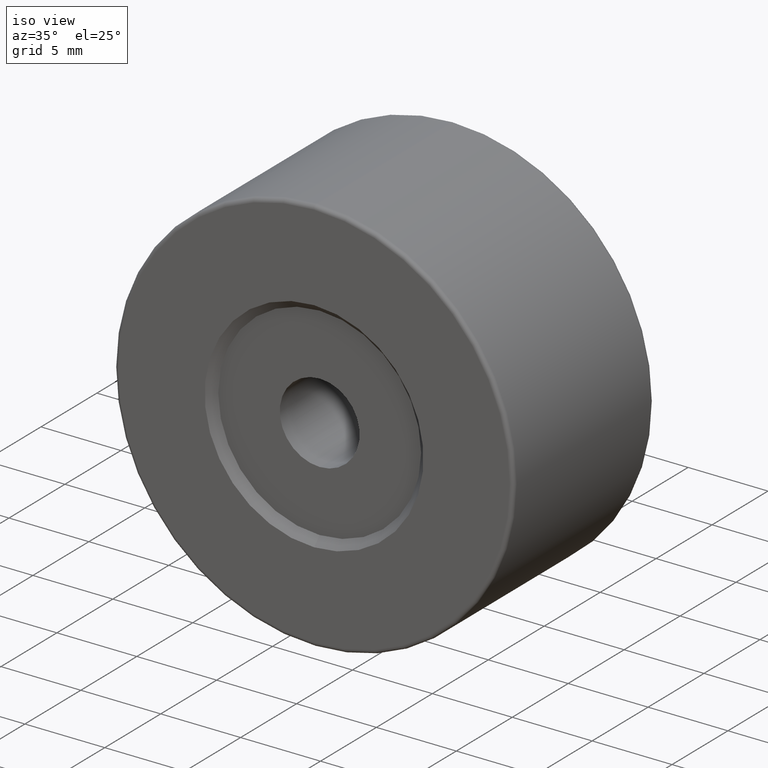
[diagram: clean part render]
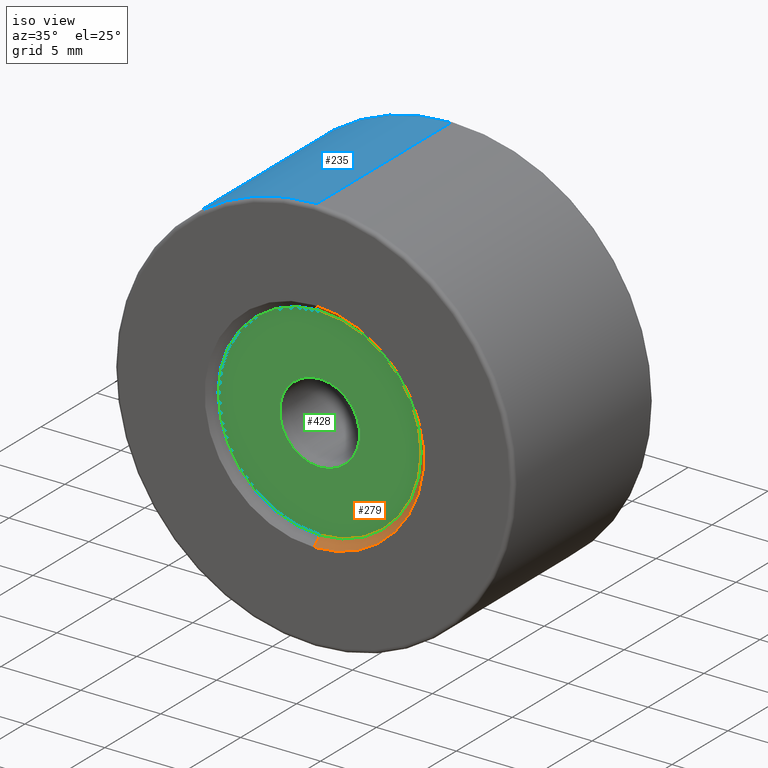
[diagram: same view with three faces highlighted in distinct colors, each labeled with its STEP entity id]
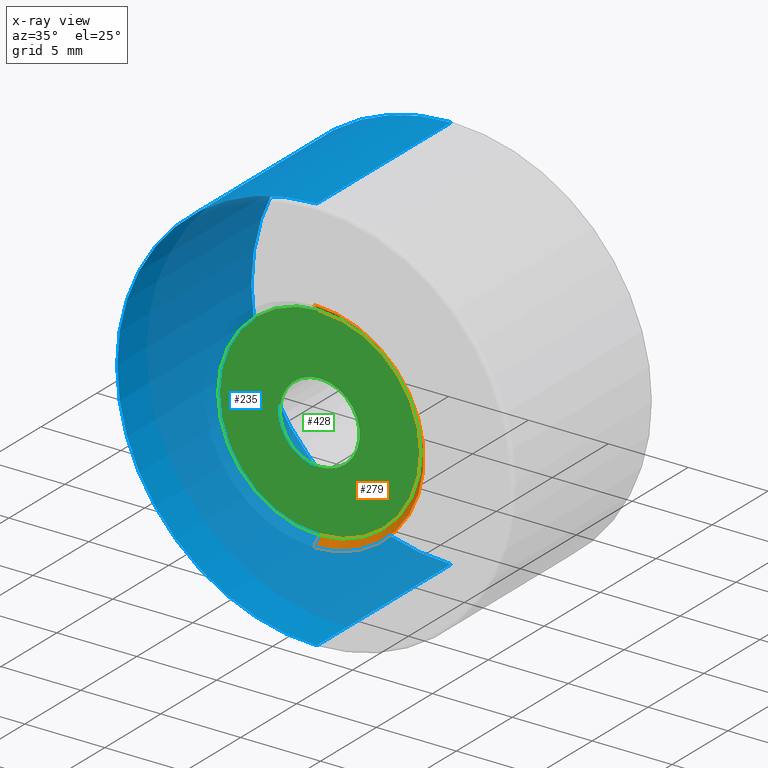
[diagram: x-ray of the same camera — body ghosted, the three highlighted faces saturated]
A machine part, iso view with three faces highlighted in distinct colors.
The next image is the same camera in x-ray (body ghosted, the three faces saturated) — at least one of them is partly hidden behind the body in this view.
Their STEP definitions:

[orange] entity #279 — the highlighted conical surface has half-angle 45 deg.
#9 = FACE_OUTER_BOUND ( 'NONE', #497, .T. ) ;
#39 = CARTESIAN_POINT ( 'NONE',  ( -22.50520183104453409, -4.851747815230612382, 56.85000000000000142 ) ) ;
#40 = EDGE_CURVE ( 'NONE', #120, #565, #305, .T. ) ;
#48 = CARTESIAN_POINT ( 'NONE',  ( -22.50520183104453409, -4.851747815230612382, 43.14999999999999858 ) ) ;
#51 = AXIS2_PLACEMENT_3D ( 'NONE', #94, #544, #185 ) ;
#52 = CIRCLE ( 'NONE', #455, 6.350000000000001421 ) ;
#88 = DIRECTION ( 'NONE',  ( 0.0000000000000000000, 0.0000000000000000000, 1.000000000000000000 ) ) ;
#89 = LINE ( 'NONE', #48, #489 ) ;
#94 = CARTESIAN_POINT ( 'NONE',  ( -22.50520183104453409, -4.851747815230612382, 50.00000000000000000 ) ) ;
#120 = VERTEX_POINT ( 'NONE', #39 ) ;
#185 = DIRECTION ( 'NONE',  ( 0.0000000000000000000, 0.0000000000000000000, -1.000000000000000000 ) ) ;
#211 = ORIENTED_EDGE ( 'NONE', *, *, #260, .T. ) ;
#232 = DIRECTION ( 'NONE',  ( 0.0000000000000000000, -0.7071067811865469066, -0.7071067811865482389 ) ) ;
#260 = EDGE_CURVE ( 'NONE', #429, #565, #89, .T. ) ;
#279 = ADVANCED_FACE ( 'NONE', ( #9 ), #298, .F. ) ;
#298 = CONICAL_SURFACE ( 'NONE', #51, 6.850000000000002309, 0.7853981633974491672 ) ;
#305 = CIRCLE ( 'NONE', #396, 6.850000000000002309 ) ;
#319 = EDGE_CURVE ( 'NONE', #492, #429, #52, .T. ) ;
#334 = ORIENTED_EDGE ( 'NONE', *, *, #471, .F. ) ;
#355 = DIRECTION ( 'NONE',  ( 0.0000000000000000000, 0.0000000000000000000, 1.000000000000000000 ) ) ;
#362 = DIRECTION ( 'NONE',  ( 0.0000000000000000000, 1.000000000000000000, 0.0000000000000000000 ) ) ;
#373 = LINE ( 'NONE', #553, #481 ) ;
#396 = AXIS2_PLACEMENT_3D ( 'NONE', #452, #362, #88 ) ;
#403 = DIRECTION ( 'NONE',  ( -0.0000000000000000000, 1.000000000000000000, -0.0000000000000000000 ) ) ;
#429 = VERTEX_POINT ( 'NONE', #500 ) ;
#452 = CARTESIAN_POINT ( 'NONE',  ( -22.50520183104453409, -4.851747815230612382, 50.00000000000000000 ) ) ;
#454 = CARTESIAN_POINT ( 'NONE',  ( -22.50520183104453409, -4.351747815230611494, 50.00000000000000000 ) ) ;
#455 = AXIS2_PLACEMENT_3D ( 'NONE', #454, #403, #355 ) ;
#461 = CARTESIAN_POINT ( 'NONE',  ( -22.50520183104453409, -4.851747815230612382, 43.14999999999999858 ) ) ;
#471 = EDGE_CURVE ( 'NONE', #492, #120, #373, .T. ) ;
#472 = ORIENTED_EDGE ( 'NONE', *, *, #319, .T. ) ;
#481 = VECTOR ( 'NONE', #508, 999.9999999999998863 ) ;
#489 = VECTOR ( 'NONE', #232, 999.9999999999998863 ) ;
#492 = VERTEX_POINT ( 'NONE', #509 ) ;
#497 = EDGE_LOOP ( 'NONE', ( #334, #472, #211, #546 ) ) ;
#500 = CARTESIAN_POINT ( 'NONE',  ( -22.50520183104453409, -4.351747815230611494, 43.64999999999999858 ) ) ;
#508 = DIRECTION ( 'NONE',  ( 8.659560562354941486E-17, -0.7071067811865469066, 0.7071067811865482389 ) ) ;
#509 = CARTESIAN_POINT ( 'NONE',  ( -22.50520183104453409, -4.351747815230611494, 56.35000000000000142 ) ) ;
#544 = DIRECTION ( 'NONE',  ( -0.0000000000000000000, -1.000000000000000000, -0.0000000000000000000 ) ) ;
#546 = ORIENTED_EDGE ( 'NONE', *, *, #40, .F. ) ;
#553 = CARTESIAN_POINT ( 'NONE',  ( -22.50520183104453409, -4.851747815230612382, 56.85000000000000142 ) ) ;
#565 = VERTEX_POINT ( 'NONE', #461 ) ;

[blue] entity #235 — the highlighted cylindrical surface (partial cylindrical patch) has radius 12.5 mm, axis along (-0, -1, -0).
#25 = DIRECTION ( 'NONE',  ( 0.0000000000000000000, 0.0000000000000000000, 1.000000000000000000 ) ) ;
#64 = CARTESIAN_POINT ( 'NONE',  ( -22.50520183104453409, -4.601747815230612382, 50.00000000000000000 ) ) ;
#70 = EDGE_LOOP ( 'NONE', ( #467, #360, #560, #108 ) ) ;
#84 = LINE ( 'NONE', #458, #439 ) ;
#92 = DIRECTION ( 'NONE',  ( -0.0000000000000000000, -1.000000000000000000, -0.0000000000000000000 ) ) ;
#108 = ORIENTED_EDGE ( 'NONE', *, *, #548, .T. ) ;
#123 = AXIS2_PLACEMENT_3D ( 'NONE', #225, #318, #498 ) ;
#125 = CYLINDRICAL_SURFACE ( 'NONE', #478, 12.49999999999999645 ) ;
#133 = CARTESIAN_POINT ( 'NONE',  ( -22.50520183104453409, 7.648252184769388506, 62.50000000000000000 ) ) ;
#134 = VECTOR ( 'NONE', #266, 1000.000000000000000 ) ;
#136 = FACE_OUTER_BOUND ( 'NONE', #70, .T. ) ;
#142 = CARTESIAN_POINT ( 'NONE',  ( -22.50520183104453409, 7.398252184769388506, 37.50000000000000711 ) ) ;
#156 = VERTEX_POINT ( 'NONE', #394 ) ;
#225 = CARTESIAN_POINT ( 'NONE',  ( -22.50520183104453409, 7.398252184769388506, 50.00000000000000000 ) ) ;
#235 = ADVANCED_FACE ( 'NONE', ( #136 ), #125, .T. ) ;
#266 = DIRECTION ( 'NONE',  ( -0.0000000000000000000, -1.000000000000000000, -0.0000000000000000000 ) ) ;
#268 = CARTESIAN_POINT ( 'NONE',  ( -22.50520183104453409, 7.648252184769388506, 50.00000000000000000 ) ) ;
#272 = DIRECTION ( 'NONE',  ( -0.0000000000000000000, -1.000000000000000000, -0.0000000000000000000 ) ) ;
#273 = EDGE_CURVE ( 'NONE', #393, #156, #447, .T. ) ;
#303 = EDGE_CURVE ( 'NONE', #393, #487, #378, .T. ) ;
#318 = DIRECTION ( 'NONE',  ( -0.0000000000000000000, -1.000000000000000000, -0.0000000000000000000 ) ) ;
#329 = DIRECTION ( 'NONE',  ( 0.0000000000000000000, 1.000000000000000000, 0.0000000000000000000 ) ) ;
#330 = CARTESIAN_POINT ( 'NONE',  ( -22.50520183104453409, 7.398252184769388506, 62.50000000000000000 ) ) ;
#337 = VERTEX_POINT ( 'NONE', #574 ) ;
#357 = DIRECTION ( 'NONE',  ( 0.0000000000000000000, 0.0000000000000000000, -1.000000000000000000 ) ) ;
#360 = ORIENTED_EDGE ( 'NONE', *, *, #303, .T. ) ;
#367 = EDGE_CURVE ( 'NONE', #487, #337, #84, .T. ) ;
#378 = CIRCLE ( 'NONE', #123, 12.49999999999999645 ) ;
#393 = VERTEX_POINT ( 'NONE', #330 ) ;
#394 = CARTESIAN_POINT ( 'NONE',  ( -22.50520183104453409, -4.601747815230612382, 62.50000000000000000 ) ) ;
#404 = AXIS2_PLACEMENT_3D ( 'NONE', #64, #329, #25 ) ;
#439 = VECTOR ( 'NONE', #272, 1000.000000000000000 ) ;
#447 = LINE ( 'NONE', #133, #134 ) ;
#458 = CARTESIAN_POINT ( 'NONE',  ( -22.50520183104453409, 7.648252184769388506, 37.50000000000000711 ) ) ;
#467 = ORIENTED_EDGE ( 'NONE', *, *, #273, .F. ) ;
#478 = AXIS2_PLACEMENT_3D ( 'NONE', #268, #92, #357 ) ;
#487 = VERTEX_POINT ( 'NONE', #142 ) ;
#498 = DIRECTION ( 'NONE',  ( 0.0000000000000000000, 0.0000000000000000000, 1.000000000000000000 ) ) ;
#532 = CIRCLE ( 'NONE', #404, 12.49999999999999645 ) ;
#548 = EDGE_CURVE ( 'NONE', #337, #156, #532, .T. ) ;
#560 = ORIENTED_EDGE ( 'NONE', *, *, #367, .T. ) ;
#574 = CARTESIAN_POINT ( 'NONE',  ( -22.50520183104453409, -4.601747815230612382, 37.50000000000000711 ) ) ;

[green] entity #428 — the highlighted planar face has unit normal (0, -1, 0).
#16 = CARTESIAN_POINT ( 'NONE',  ( -22.50520183104453409, -4.351747815230611494, 50.00000000000000000 ) ) ;
#19 = FACE_OUTER_BOUND ( 'NONE', #245, .T. ) ;
#37 = AXIS2_PLACEMENT_3D ( 'NONE', #103, #460, #63 ) ;
#52 = CIRCLE ( 'NONE', #455, 6.350000000000001421 ) ;
#59 = CARTESIAN_POINT ( 'NONE',  ( -22.50520183104453409, -4.351747815230611494, 52.50000000000000000 ) ) ;
#63 = DIRECTION ( 'NONE',  ( 0.0000000000000000000, 0.0000000000000000000, 1.000000000000000000 ) ) ;
#66 = VERTEX_POINT ( 'NONE', #138 ) ;
#87 = EDGE_CURVE ( 'NONE', #66, #375, #317, .T. ) ;
#103 = CARTESIAN_POINT ( 'NONE',  ( -22.50520183104453409, -4.351747815230611494, 50.00000000000000000 ) ) ;
#110 = ORIENTED_EDGE ( 'NONE', *, *, #445, .F. ) ;
#111 = ORIENTED_EDGE ( 'NONE', *, *, #191, .F. ) ;
#138 = CARTESIAN_POINT ( 'NONE',  ( -22.50520183104453409, -4.351747815230611494, 47.50000000000000711 ) ) ;
#143 = FACE_BOUND ( 'NONE', #386, .T. ) ;
#174 = DIRECTION ( 'NONE',  ( 0.0000000000000000000, 0.0000000000000000000, -1.000000000000000000 ) ) ;
#191 = EDGE_CURVE ( 'NONE', #375, #66, #572, .T. ) ;
#210 = DIRECTION ( 'NONE',  ( 0.0000000000000000000, 0.0000000000000000000, -1.000000000000000000 ) ) ;
#236 = DIRECTION ( 'NONE',  ( 0.0000000000000000000, 0.0000000000000000000, 1.000000000000000000 ) ) ;
#245 = EDGE_LOOP ( 'NONE', ( #110, #475 ) ) ;
#276 = DIRECTION ( 'NONE',  ( 0.0000000000000000000, -1.000000000000000000, 0.0000000000000000000 ) ) ;
#280 = PLANE ( 'NONE',  #338 ) ;
#285 = CIRCLE ( 'NONE', #37, 6.350000000000001421 ) ;
#317 = CIRCLE ( 'NONE', #495, 2.499999999999995115 ) ;
#319 = EDGE_CURVE ( 'NONE', #492, #429, #52, .T. ) ;
#338 = AXIS2_PLACEMENT_3D ( 'NONE', #16, #276, #236 ) ;
#355 = DIRECTION ( 'NONE',  ( 0.0000000000000000000, 0.0000000000000000000, 1.000000000000000000 ) ) ;
#370 = ORIENTED_EDGE ( 'NONE', *, *, #87, .F. ) ;
#375 = VERTEX_POINT ( 'NONE', #59 ) ;
#386 = EDGE_LOOP ( 'NONE', ( #370, #111 ) ) ;
#401 = CARTESIAN_POINT ( 'NONE',  ( -22.50520183104453409, -4.351747815230611494, 50.00000000000000000 ) ) ;
#403 = DIRECTION ( 'NONE',  ( -0.0000000000000000000, 1.000000000000000000, -0.0000000000000000000 ) ) ;
#428 = ADVANCED_FACE ( 'NONE', ( #143, #19 ), #280, .T. ) ;
#429 = VERTEX_POINT ( 'NONE', #500 ) ;
#445 = EDGE_CURVE ( 'NONE', #429, #492, #285, .T. ) ;
#454 = CARTESIAN_POINT ( 'NONE',  ( -22.50520183104453409, -4.351747815230611494, 50.00000000000000000 ) ) ;
#455 = AXIS2_PLACEMENT_3D ( 'NONE', #454, #403, #355 ) ;
#460 = DIRECTION ( 'NONE',  ( -0.0000000000000000000, 1.000000000000000000, -0.0000000000000000000 ) ) ;
#466 = AXIS2_PLACEMENT_3D ( 'NONE', #519, #473, #210 ) ;
#473 = DIRECTION ( 'NONE',  ( 0.0000000000000000000, -1.000000000000000000, 0.0000000000000000000 ) ) ;
#475 = ORIENTED_EDGE ( 'NONE', *, *, #319, .F. ) ;
#492 = VERTEX_POINT ( 'NONE', #509 ) ;
#495 = AXIS2_PLACEMENT_3D ( 'NONE', #401, #579, #174 ) ;
#500 = CARTESIAN_POINT ( 'NONE',  ( -22.50520183104453409, -4.351747815230611494, 43.64999999999999858 ) ) ;
#509 = CARTESIAN_POINT ( 'NONE',  ( -22.50520183104453409, -4.351747815230611494, 56.35000000000000142 ) ) ;
#519 = CARTESIAN_POINT ( 'NONE',  ( -22.50520183104453409, -4.351747815230611494, 50.00000000000000000 ) ) ;
#572 = CIRCLE ( 'NONE', #466, 2.499999999999995115 ) ;
#579 = DIRECTION ( 'NONE',  ( 0.0000000000000000000, -1.000000000000000000, 0.0000000000000000000 ) ) ;